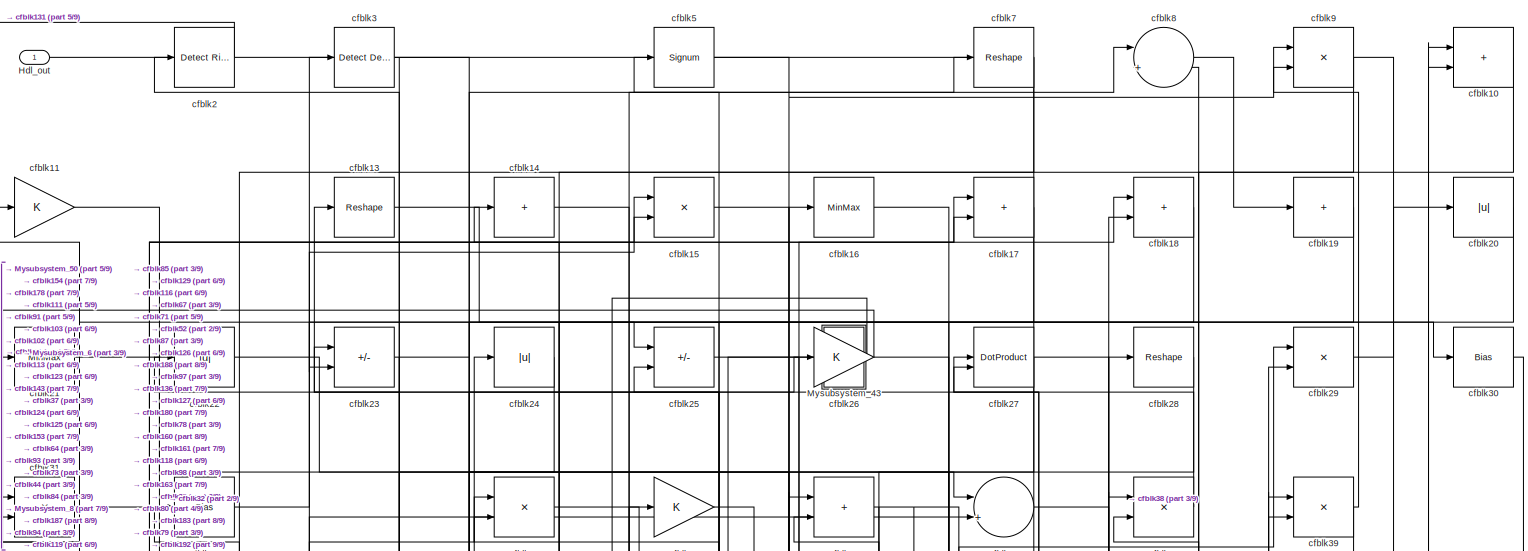
[diagram: root canvas - part 1/9, full width, top band]
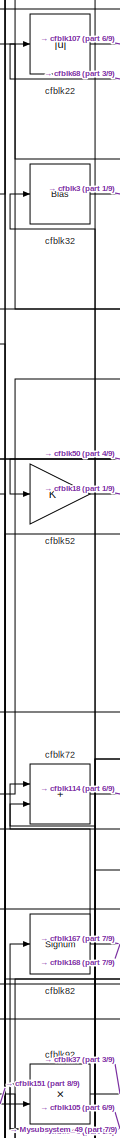
[diagram: root canvas - part 2/9, top left region]
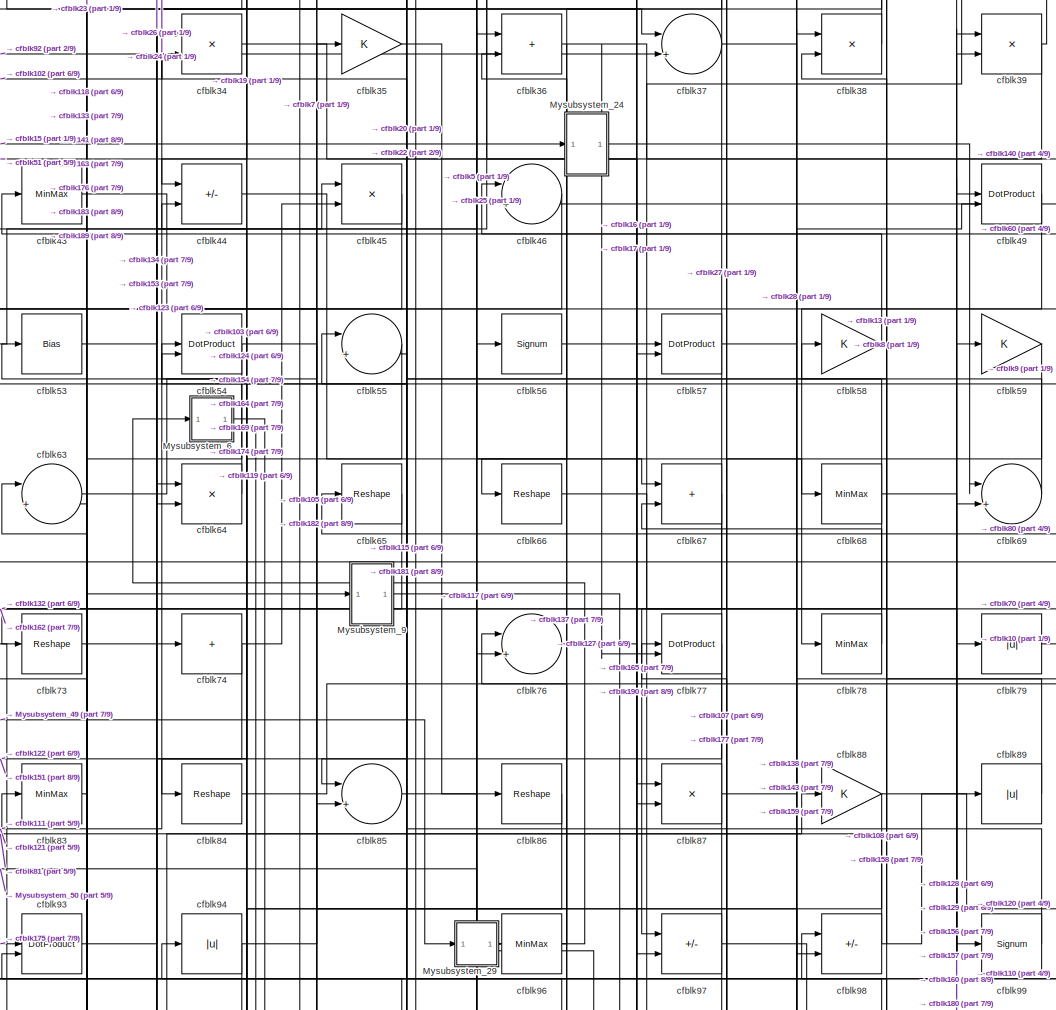
[diagram: root canvas - part 3/9, top center region]
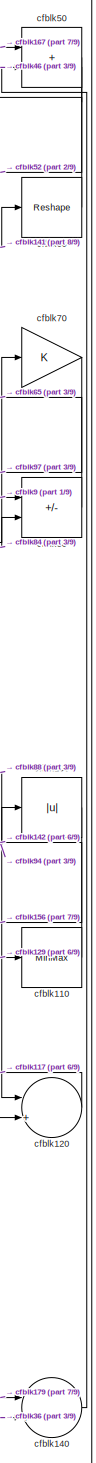
[diagram: root canvas - part 4/9, middle right region]
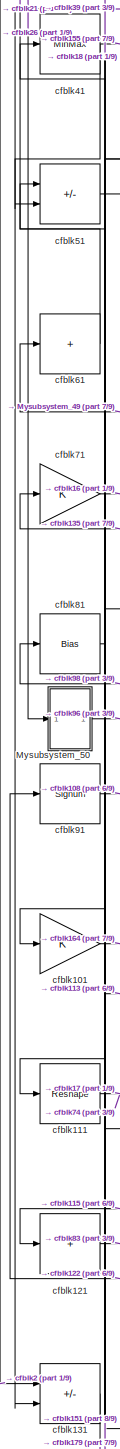
[diagram: root canvas - part 5/9, middle left region]
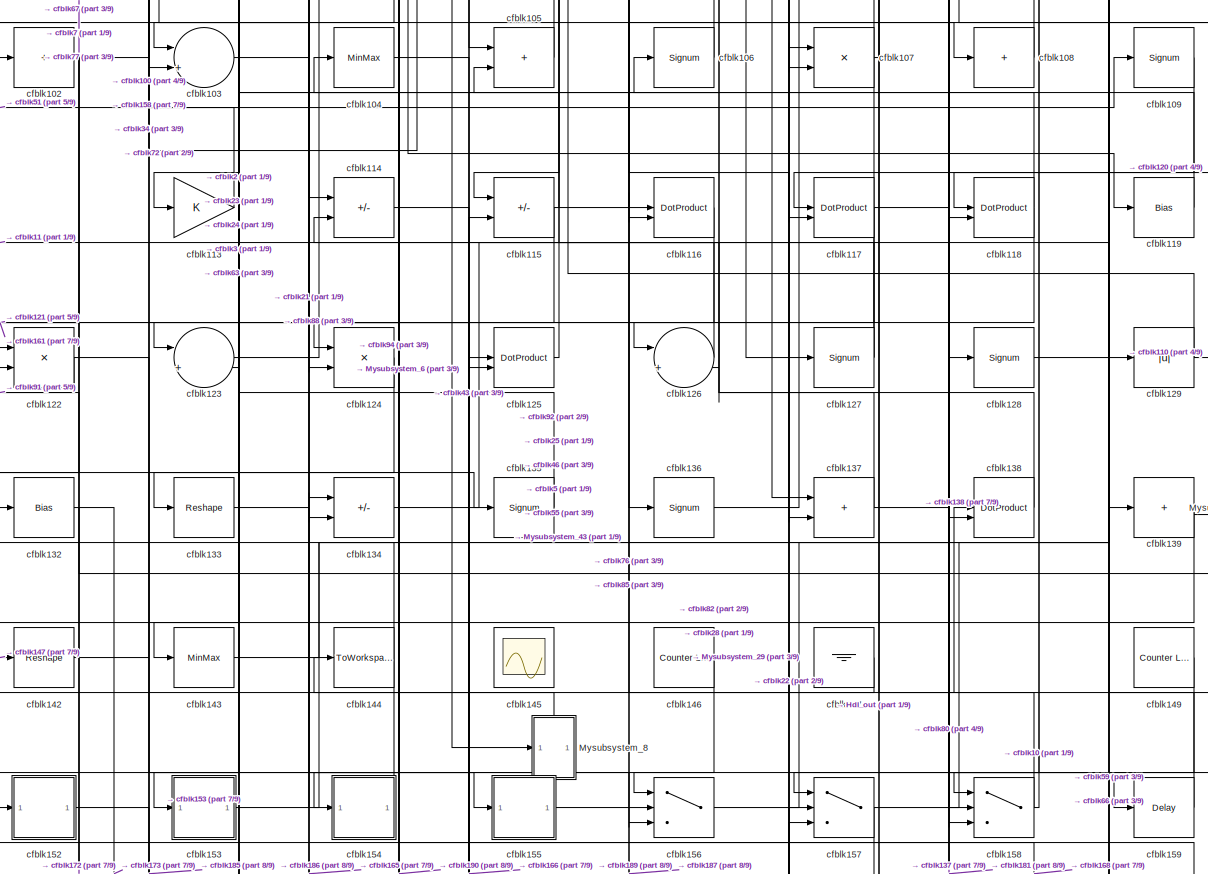
[diagram: root canvas - part 6/9, full width, middle band]
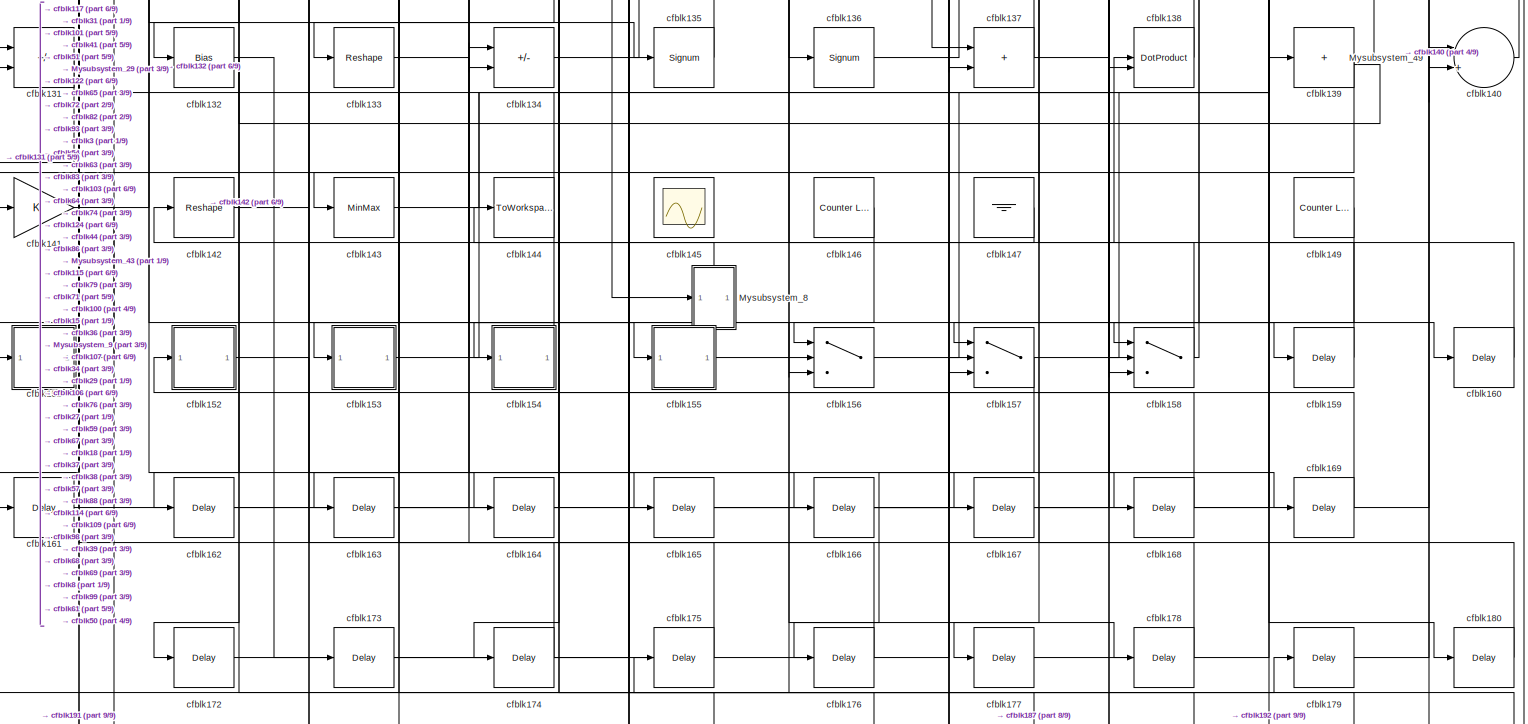
[diagram: root canvas - part 7/9, full width, bottom band]
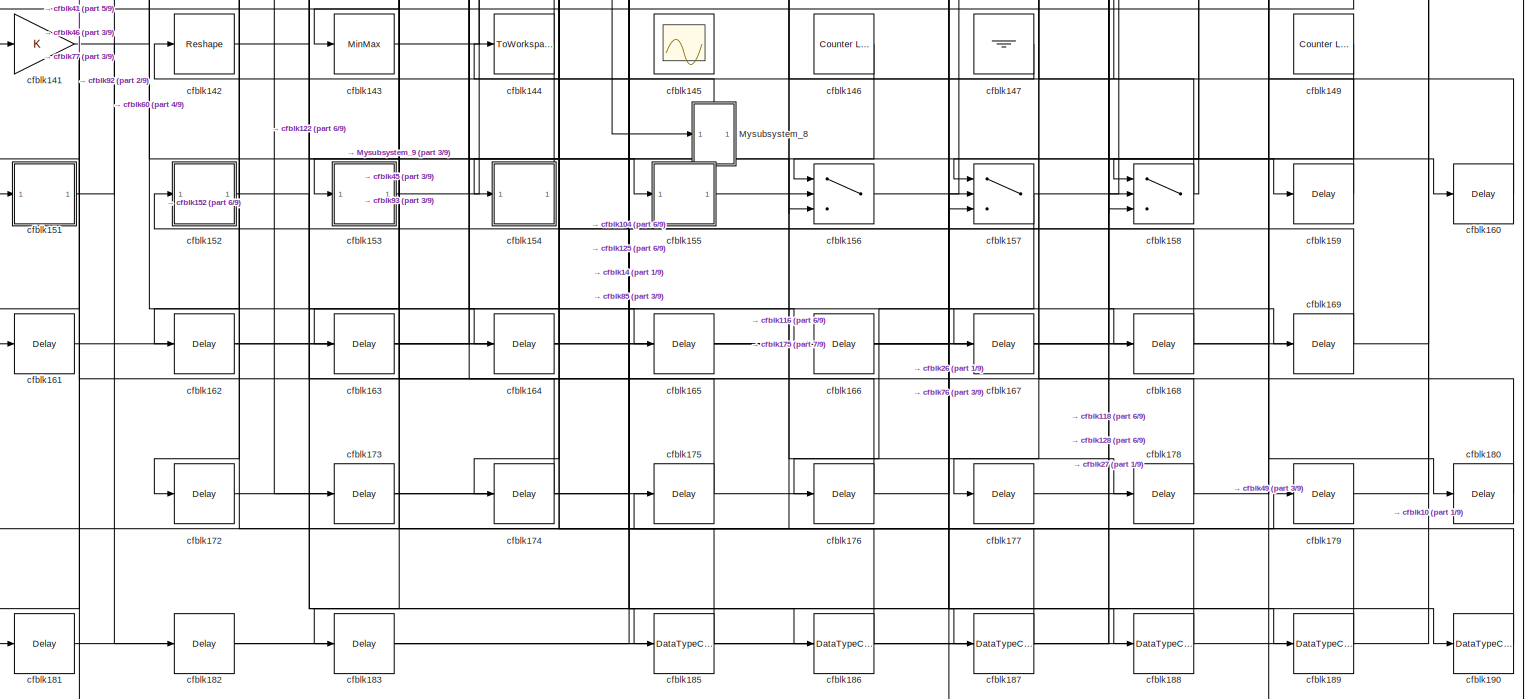
[diagram: root canvas - part 8/9, full width, bottom band]
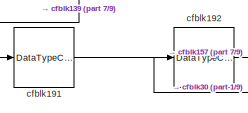
[diagram: root canvas - part 9/9, bottom left region]
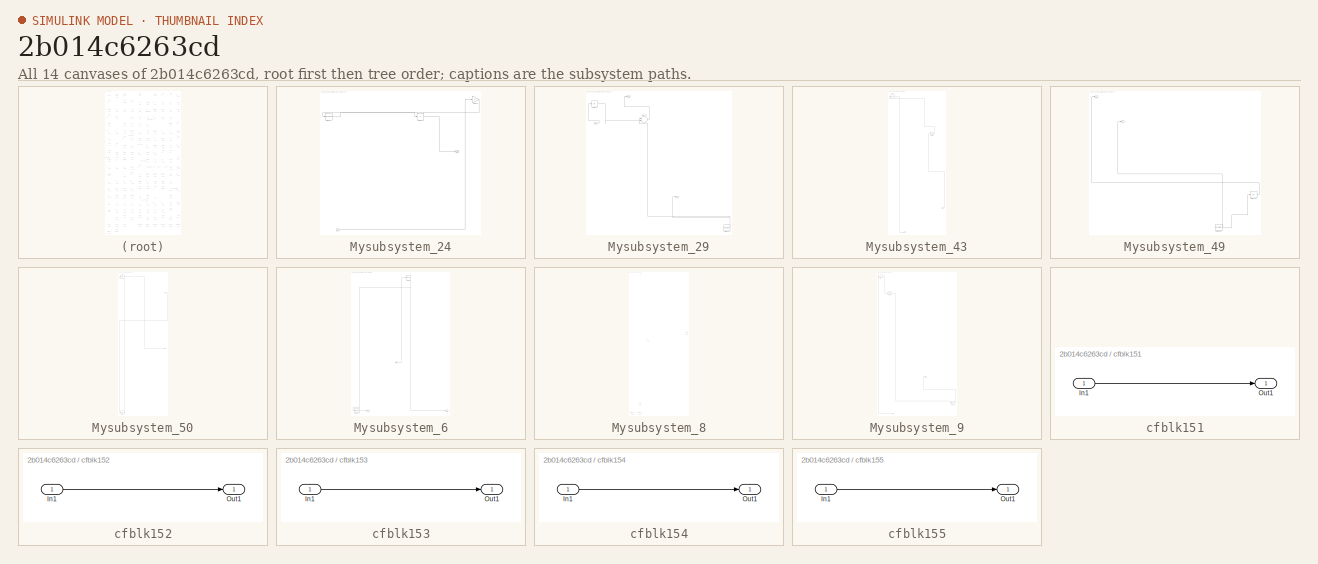
[diagram: thumbnail index - all 14 canvases of the model, root first then tree order]
MODEL slx_2b014c6263cd
KIND model
CONFIG AbsTol = auto
CONFIG EnableMultiTasking = off
CONFIG FixedStep = auto
CONFIG MaxStep = auto
CONFIG MinStep = auto
CONFIG RelTol = 1e-3
CONFIG SampleTimeConstraint = Unconstrained
CONFIG SolverName = VariableStepAuto
CONFIG StartTime = 0.0
CONFIG StopTime = 10.0
BLOCK [Outport] Hdl_out
  OutDataTypeStr = uint8
BLOCK [SubSystem] Mysubsystem_24
  RTWFcnName = Mysubsystem_24
  RTWFcnNameOpts = User specified
  RTWFileNameOpts = Use function name
  RTWSystemCode = Reusable function
  TreatAsAtomicUnit = on
BLOCK [Inport] Mysubsystem_24/In1
BLOCK [Outport] Mysubsystem_24/Out1
BLOCK [Gain] Mysubsystem_24/cfblk40
BLOCK [Reshape] Mysubsystem_24/cfblk42
BLOCK [Sum] Mysubsystem_24/cfblk47
  IconShape = rectangular
  Inputs = +
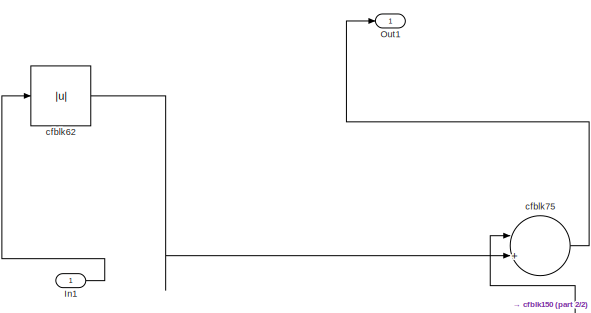
[diagram: Mysubsystem_29 - part 1/2, top left region]
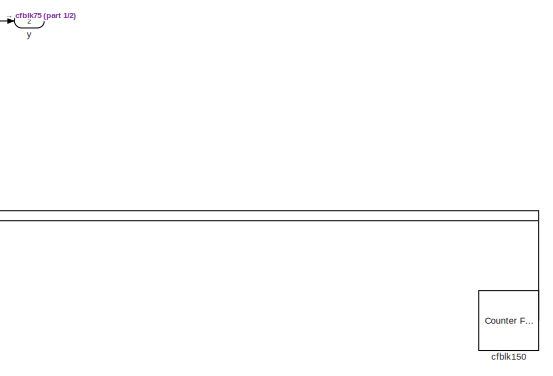
[diagram: Mysubsystem_29 - part 2/2, bottom right region]
BLOCK [SubSystem] Mysubsystem_29
  RTWFcnName = Mysubsystem_29
  RTWFcnNameOpts = User specified
  RTWFileNameOpts = Use function name
  RTWSystemCode = Reusable function
  TreatAsAtomicUnit = on
BLOCK [Inport] Mysubsystem_29/In1
BLOCK [Outport] Mysubsystem_29/Out1
BLOCK [Reference] Mysubsystem_29/cfblk150  REF=hdlsllib/Sources/Counter
Free-Running
  SourceBlock = hdlsllib/Sources/Counter\nFree-Running
  SourceType = Counter Free-Running
BLOCK [Abs] Mysubsystem_29/cfblk62
  SaturateOnIntegerOverflow = off
BLOCK [Sum] Mysubsystem_29/cfblk75
  Inputs = |++
BLOCK [Outport] Mysubsystem_29/y
  Port = 2
BLOCK [SubSystem] Mysubsystem_43
  RTWFcnName = Mysubsystem_43
  RTWFcnNameOpts = User specified
  RTWFileNameOpts = Use function name
  RTWSystemCode = Reusable function
  TreatAsAtomicUnit = on
BLOCK [Inport] Mysubsystem_43/In1
BLOCK [Outport] Mysubsystem_43/Y
BLOCK [Reference] Mysubsystem_43/cfblk4  REF=hdlsllib/Logic and Bit
Operations/Detect Fall
Negative
  SourceBlock = hdlsllib/Logic and Bit\nOperations/Detect Fall\nNegative
  SourceType = Detect Fall Negative
BLOCK [Gain] Mysubsystem_43/cfblk48
BLOCK [SubSystem] Mysubsystem_49
  RTWFcnName = Mysubsystem_49
  RTWFcnNameOpts = User specified
  RTWFileNameOpts = Use function name
  RTWSystemCode = Reusable function
  TreatAsAtomicUnit = on
BLOCK [Outport] Mysubsystem_49/Out1
BLOCK [Abs] Mysubsystem_49/cfblk130
  SaturateOnIntegerOverflow = off
BLOCK [Reference] Mysubsystem_49/cfblk148  REF=hdlsllib/Sources/Counter
Limited
  SourceBlock = hdlsllib/Sources/Counter\nLimited
  SourceType = Counter Limited
BLOCK [Outport] Mysubsystem_49/y
  Port = 2
BLOCK [SubSystem] Mysubsystem_50
  RTWFcnName = Mysubsystem_50
  RTWFcnNameOpts = User specified
  RTWFileNameOpts = Use function name
  RTWSystemCode = Reusable function
  TreatAsAtomicUnit = on
BLOCK [Inport] Mysubsystem_50/In1
BLOCK [Reference] Mysubsystem_50/cfblk1  REF=simulink/Logic and Bit
Operations/Bit Set
  LibrarySourceBlock = hdlsllib/Logic and Bit\nOperations/Bit Set
  SourceBlock = simulink/Logic and Bit\nOperations/Bit Set
  SourceType = Bit Set
BLOCK [Delay] Mysubsystem_50/cfblk171
  InputPortMap = u0
  SampleTime = 1
BLOCK [Outport] Mysubsystem_50/y
BLOCK [SubSystem] Mysubsystem_6
  RTWFcnName = Mysubsystem_6
  RTWFcnNameOpts = User specified
  RTWFileNameOpts = Use function name
  RTWSystemCode = Reusable function
  TreatAsAtomicUnit = on
BLOCK [Inport] Mysubsystem_6/In1
BLOCK [Outport] Mysubsystem_6/Out1
BLOCK [Outport] Mysubsystem_6/Out2
  Port = 2
BLOCK [Signum] Mysubsystem_6/cfblk112
BLOCK [Signum] Mysubsystem_6/cfblk6
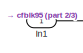
[diagram: Mysubsystem_8 - part 1/3, top left region]
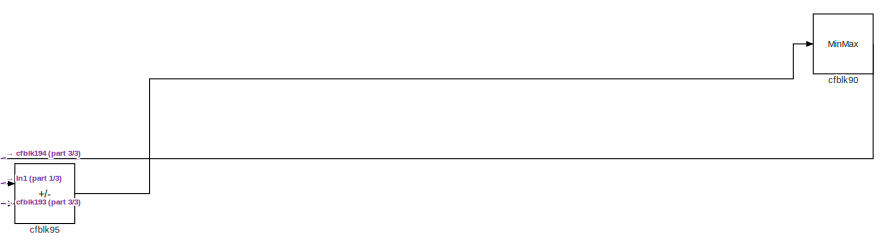
[diagram: Mysubsystem_8 - part 2/3, central region]
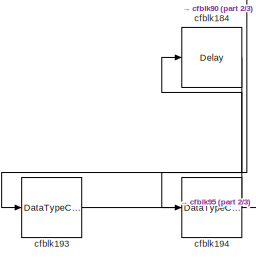
[diagram: Mysubsystem_8 - part 3/3, bottom left region]
BLOCK [SubSystem] Mysubsystem_8
  RTWFcnName = Mysubsystem_8
  RTWFcnNameOpts = User specified
  RTWFileNameOpts = Use function name
  RTWSystemCode = Reusable function
  TreatAsAtomicUnit = on
BLOCK [Inport] Mysubsystem_8/In1
BLOCK [Delay] Mysubsystem_8/cfblk184
  InputPortMap = u0
  SampleTime = 1
BLOCK [DataTypeConversion] Mysubsystem_8/cfblk193
  OutDataTypeStr = uint8
  RndMeth = Floor
  SaturateOnIntegerOverflow = off
BLOCK [DataTypeConversion] Mysubsystem_8/cfblk194
  OutDataTypeStr = uint8
  RndMeth = Floor
  SaturateOnIntegerOverflow = off
BLOCK [MinMax] Mysubsystem_8/cfblk90
BLOCK [Sum] Mysubsystem_8/cfblk95
  IconShape = rectangular
  Inputs = +-
BLOCK [SubSystem] Mysubsystem_9
  RTWFcnName = Mysubsystem_9
  RTWFcnNameOpts = User specified
  RTWFileNameOpts = Use function name
  RTWSystemCode = Reusable function
  TreatAsAtomicUnit = on
BLOCK [Inport] Mysubsystem_9/In1
BLOCK [Outport] Mysubsystem_9/Out1
BLOCK [Abs] Mysubsystem_9/cfblk12
  SaturateOnIntegerOverflow = off
BLOCK [Delay] Mysubsystem_9/cfblk170
  InputPortMap = u0
  SampleTime = 1
BLOCK [MinMax] Mysubsystem_9/cfblk33
BLOCK [Sum] cfblk10
  IconShape = rectangular
  OutDataTypeStr = uint8
BLOCK [Abs] cfblk100
  OutDataTypeStr = uint8
  SaturateOnIntegerOverflow = off
BLOCK [Gain] cfblk101
  OutDataTypeStr = uint8
BLOCK [Sum] cfblk102
  IconShape = rectangular
  Inputs = +
  OutDataTypeStr = uint8
BLOCK [Sum] cfblk103
  Inputs = |++
  OutDataTypeStr = uint8
BLOCK [MinMax] cfblk104
  OutDataTypeStr = uint8
BLOCK [Sum] cfblk105
  IconShape = rectangular
  OutDataTypeStr = uint8
BLOCK [Signum] cfblk106
BLOCK [Product] cfblk107
  Inputs = */
  OutDataTypeStr = uint8
  RndMeth = Zero
  SaturateOnIntegerOverflow = on
BLOCK [Sum] cfblk108
  IconShape = rectangular
  Inputs = +
  OutDataTypeStr = uint8
BLOCK [Signum] cfblk109
BLOCK [Gain] cfblk11
  OutDataTypeStr = uint8
BLOCK [MinMax] cfblk110
  OutDataTypeStr = uint8
BLOCK [Reshape] cfblk111
BLOCK [Gain] cfblk113
  OutDataTypeStr = uint8
BLOCK [Sum] cfblk114
  IconShape = rectangular
  Inputs = +-
  OutDataTypeStr = uint8
BLOCK [Sum] cfblk115
  IconShape = rectangular
  Inputs = +-
  OutDataTypeStr = uint8
BLOCK [DotProduct] cfblk116
  OutDataTypeStr = uint8
BLOCK [DotProduct] cfblk117
  OutDataTypeStr = uint8
BLOCK [DotProduct] cfblk118
  OutDataTypeStr = uint8
BLOCK [Bias] cfblk119
  Bias = 0.0
  SaturateOnIntegerOverflow = off
BLOCK [Sum] cfblk120
  Inputs = |++
  OutDataTypeStr = uint8
BLOCK [Sum] cfblk121
  IconShape = rectangular
  Inputs = +
  OutDataTypeStr = uint8
BLOCK [Product] cfblk122
  Inputs = */
  OutDataTypeStr = uint8
  RndMeth = Zero
  SaturateOnIntegerOverflow = on
BLOCK [Sum] cfblk123
  Inputs = |++
  OutDataTypeStr = uint8
BLOCK [Product] cfblk124
  Inputs = */
  OutDataTypeStr = uint8
  RndMeth = Zero
  SaturateOnIntegerOverflow = on
BLOCK [DotProduct] cfblk125
  OutDataTypeStr = uint8
BLOCK [Sum] cfblk126
  Inputs = |++
  OutDataTypeStr = uint8
BLOCK [Signum] cfblk127
BLOCK [Signum] cfblk128
BLOCK [Abs] cfblk129
  OutDataTypeStr = uint8
  SaturateOnIntegerOverflow = off
BLOCK [Reshape] cfblk13
BLOCK [Sum] cfblk131
  IconShape = rectangular
  Inputs = +-
  OutDataTypeStr = uint8
BLOCK [Bias] cfblk132
  Bias = 0.0
  SaturateOnIntegerOverflow = off
BLOCK [Reshape] cfblk133
BLOCK [Sum] cfblk134
  IconShape = rectangular
  Inputs = +-
  OutDataTypeStr = uint8
BLOCK [Signum] cfblk135
BLOCK [Signum] cfblk136
BLOCK [Sum] cfblk137
  IconShape = rectangular
  OutDataTypeStr = uint8
BLOCK [DotProduct] cfblk138
  OutDataTypeStr = uint8
BLOCK [Sum] cfblk139
  IconShape = rectangular
  Inputs = +
  OutDataTypeStr = uint8
BLOCK [Sum] cfblk14
  IconShape = rectangular
  Inputs = +
  OutDataTypeStr = uint8
BLOCK [Sum] cfblk140
  Inputs = |++
  OutDataTypeStr = uint8
BLOCK [Gain] cfblk141
  OutDataTypeStr = uint8
BLOCK [Reshape] cfblk142
BLOCK [MinMax] cfblk143
  OutDataTypeStr = uint8
BLOCK [ToWorkspace] cfblk144
  MaxDataPoints = inf
  SampleTime = -1
  SaveFormat = Timeseries
  VariableName = simout
BLOCK [Scope] cfblk145
  Floating = on
  NumInputPorts = 1
  ScopeSpecificationString = Simulink.scopes.TimeScopeBlockCfg('CurrentConfiguration', extmgr.ConfigurationSet(extmgr.Configuration('Core','General UI',true,'FigureColor',[0.156862745098039 0.156862745098039 0.156862745098039]),extmgr.Configuration('Core','Source UI',true),extmgr.Configuration('Sources','WiredSimulink',true,'DataLoggingVariableName','ScopeData1','DataLoggingSaveFormat','StructureWithTime','DataLoggingLimitDat...<+2713ch>
BLOCK [Reference] cfblk146  REF=hdlsllib/Sources/Counter
Limited
  SourceBlock = hdlsllib/Sources/Counter\nLimited
  SourceType = Counter Limited
BLOCK [Ground] cfblk147
BLOCK [Reference] cfblk149  REF=hdlsllib/Sources/Counter
Limited
  SourceBlock = hdlsllib/Sources/Counter\nLimited
  SourceType = Counter Limited
BLOCK [Product] cfblk15
  Inputs = */
  OutDataTypeStr = uint8
  RndMeth = Zero
  SaturateOnIntegerOverflow = on
BLOCK [SubSystem] cfblk151
  LibrarySourceBlock = hdlsllib/Ports &\nSubsystems/Subsystem
BLOCK [Inport] cfblk151/In1
BLOCK [Outport] cfblk151/Out1
BLOCK [SubSystem] cfblk152
  LibrarySourceBlock = hdlsllib/Ports &\nSubsystems/Subsystem
BLOCK [Inport] cfblk152/In1
BLOCK [Outport] cfblk152/Out1
BLOCK [SubSystem] cfblk153
  LibrarySourceBlock = hdlsllib/Ports &\nSubsystems/Subsystem
BLOCK [Inport] cfblk153/In1
BLOCK [Outport] cfblk153/Out1
BLOCK [SubSystem] cfblk154
  LibrarySourceBlock = hdlsllib/Ports &\nSubsystems/Subsystem
BLOCK [Inport] cfblk154/In1
BLOCK [Outport] cfblk154/Out1
BLOCK [SubSystem] cfblk155
  LibrarySourceBlock = hdlsllib/Ports &\nSubsystems/Subsystem
BLOCK [Inport] cfblk155/In1
BLOCK [Outport] cfblk155/Out1
BLOCK [Switch] cfblk156
  InputSameDT = off
  OutDataTypeStr = uint8
  SaturateOnIntegerOverflow = off
BLOCK [Switch] cfblk157
  InputSameDT = off
  OutDataTypeStr = uint8
  SaturateOnIntegerOverflow = off
BLOCK [Switch] cfblk158
  InputSameDT = off
  OutDataTypeStr = uint8
  SaturateOnIntegerOverflow = off
BLOCK [Delay] cfblk159
  InputPortMap = u0
  SampleTime = 1
BLOCK [MinMax] cfblk16
  OutDataTypeStr = uint8
BLOCK [Delay] cfblk160
  InputPortMap = u0
  SampleTime = 1
BLOCK [Delay] cfblk161
  InputPortMap = u0
  SampleTime = 1
BLOCK [Delay] cfblk162
  InputPortMap = u0
  SampleTime = 1
BLOCK [Delay] cfblk163
  InputPortMap = u0
  SampleTime = 1
BLOCK [Delay] cfblk164
  InputPortMap = u0
  SampleTime = 1
BLOCK [Delay] cfblk165
  InputPortMap = u0
  SampleTime = 1
BLOCK [Delay] cfblk166
  InputPortMap = u0
  SampleTime = 1
BLOCK [Delay] cfblk167
  InputPortMap = u0
  SampleTime = 1
BLOCK [Delay] cfblk168
  InputPortMap = u0
  SampleTime = 1
BLOCK [Delay] cfblk169
  InputPortMap = u0
  SampleTime = 1
BLOCK [Sum] cfblk17
  IconShape = rectangular
  OutDataTypeStr = uint8
BLOCK [Delay] cfblk172
  InputPortMap = u0
  SampleTime = 1
BLOCK [Delay] cfblk173
  InputPortMap = u0
  SampleTime = 1
BLOCK [Delay] cfblk174
  InputPortMap = u0
  SampleTime = 1
BLOCK [Delay] cfblk175
  InputPortMap = u0
  SampleTime = 1
BLOCK [Delay] cfblk176
  InputPortMap = u0
  SampleTime = 1
BLOCK [Delay] cfblk177
  InputPortMap = u0
  SampleTime = 1
BLOCK [Delay] cfblk178
  InputPortMap = u0
  SampleTime = 1
BLOCK [Delay] cfblk179
  InputPortMap = u0
  SampleTime = 1
BLOCK [Sum] cfblk18
  IconShape = rectangular
  OutDataTypeStr = uint8
BLOCK [Delay] cfblk180
  InputPortMap = u0
  SampleTime = 1
BLOCK [Delay] cfblk181
  InputPortMap = u0
  SampleTime = 1
BLOCK [Delay] cfblk182
  InputPortMap = u0
  SampleTime = 1
BLOCK [Delay] cfblk183
  InputPortMap = u0
  SampleTime = 1
BLOCK [DataTypeConversion] cfblk185
  OutDataTypeStr = uint8
  RndMeth = Floor
  SaturateOnIntegerOverflow = off
BLOCK [DataTypeConversion] cfblk186
  OutDataTypeStr = uint8
  RndMeth = Floor
  SaturateOnIntegerOverflow = off
BLOCK [DataTypeConversion] cfblk187
  OutDataTypeStr = uint8
  RndMeth = Floor
  SaturateOnIntegerOverflow = off
BLOCK [DataTypeConversion] cfblk188
  OutDataTypeStr = uint8
  RndMeth = Floor
  SaturateOnIntegerOverflow = off
BLOCK [DataTypeConversion] cfblk189
  OutDataTypeStr = uint8
  RndMeth = Floor
  SaturateOnIntegerOverflow = off
BLOCK [Sum] cfblk19
  IconShape = rectangular
  Inputs = +
  OutDataTypeStr = uint8
BLOCK [DataTypeConversion] cfblk190
  OutDataTypeStr = uint8
  RndMeth = Floor
  SaturateOnIntegerOverflow = off
BLOCK [DataTypeConversion] cfblk191
  OutDataTypeStr = uint8
  RndMeth = Floor
  SaturateOnIntegerOverflow = off
BLOCK [DataTypeConversion] cfblk192
  OutDataTypeStr = uint8
  RndMeth = Floor
  SaturateOnIntegerOverflow = off
BLOCK [Reference] cfblk2  REF=hdlsllib/Logic and Bit
Operations/Detect Rise
Positive
  SourceBlock = hdlsllib/Logic and Bit\nOperations/Detect Rise\nPositive
  SourceType = Detect Rise Positive
BLOCK [Abs] cfblk20
  OutDataTypeStr = uint8
  SaturateOnIntegerOverflow = off
BLOCK [MinMax] cfblk21
  OutDataTypeStr = uint8
BLOCK [Abs] cfblk22
  OutDataTypeStr = uint8
  SaturateOnIntegerOverflow = off
BLOCK [Sum] cfblk23
  IconShape = rectangular
  Inputs = +-
  OutDataTypeStr = uint8
BLOCK [Abs] cfblk24
  OutDataTypeStr = uint8
  SaturateOnIntegerOverflow = off
BLOCK [Sum] cfblk25
  IconShape = rectangular
  Inputs = +-
  OutDataTypeStr = uint8
BLOCK [Gain] cfblk26
  OutDataTypeStr = uint8
BLOCK [DotProduct] cfblk27
  OutDataTypeStr = uint8
BLOCK [Reshape] cfblk28
BLOCK [Product] cfblk29
  Inputs = */
  OutDataTypeStr = uint8
  RndMeth = Zero
  SaturateOnIntegerOverflow = on
BLOCK [Reference] cfblk3  REF=simulink/Logic and Bit
Operations/Detect
Decrease
  LibrarySourceBlock = hdlsllib/Logic and Bit\nOperations/Detect\nDecrease
  SourceBlock = simulink/Logic and Bit\nOperations/Detect\nDecrease
  SourceType = Detect Decrease
BLOCK [Bias] cfblk30
  Bias = 0.0
  SaturateOnIntegerOverflow = off
BLOCK [Product] cfblk31
  Inputs = */
  OutDataTypeStr = uint8
  RndMeth = Zero
  SaturateOnIntegerOverflow = on
BLOCK [Bias] cfblk32
  Bias = 0.0
  SaturateOnIntegerOverflow = off
BLOCK [Product] cfblk34
  Inputs = */
  OutDataTypeStr = uint8
  RndMeth = Zero
  SaturateOnIntegerOverflow = on
BLOCK [Gain] cfblk35
  OutDataTypeStr = uint8
BLOCK [Sum] cfblk36
  IconShape = rectangular
  OutDataTypeStr = uint8
BLOCK [Sum] cfblk37
  Inputs = |++
  OutDataTypeStr = uint8
BLOCK [Product] cfblk38
  Inputs = */
  OutDataTypeStr = uint8
  RndMeth = Zero
  SaturateOnIntegerOverflow = on
BLOCK [Product] cfblk39
  Inputs = */
  OutDataTypeStr = uint8
  RndMeth = Zero
  SaturateOnIntegerOverflow = on
BLOCK [MinMax] cfblk41
  OutDataTypeStr = uint8
BLOCK [MinMax] cfblk43
  OutDataTypeStr = uint8
BLOCK [Sum] cfblk44
  IconShape = rectangular
  Inputs = +-
  OutDataTypeStr = uint8
BLOCK [Product] cfblk45
  Inputs = */
  OutDataTypeStr = uint8
  RndMeth = Zero
  SaturateOnIntegerOverflow = on
BLOCK [Sum] cfblk46
  Inputs = |++
  OutDataTypeStr = uint8
BLOCK [DotProduct] cfblk49
  OutDataTypeStr = uint8
BLOCK [Signum] cfblk5
BLOCK [Sum] cfblk50
  IconShape = rectangular
  OutDataTypeStr = uint8
BLOCK [Sum] cfblk51
  IconShape = rectangular
  Inputs = +-
  OutDataTypeStr = uint8
BLOCK [Gain] cfblk52
  OutDataTypeStr = uint8
BLOCK [Bias] cfblk53
  Bias = 0.0
  SaturateOnIntegerOverflow = off
BLOCK [DotProduct] cfblk54
  OutDataTypeStr = uint8
BLOCK [Sum] cfblk55
  Inputs = |++
  OutDataTypeStr = uint8
BLOCK [Signum] cfblk56
BLOCK [DotProduct] cfblk57
  OutDataTypeStr = uint8
BLOCK [Gain] cfblk58
  OutDataTypeStr = uint8
BLOCK [Gain] cfblk59
  OutDataTypeStr = uint8
BLOCK [Reshape] cfblk60
BLOCK [Sum] cfblk61
  IconShape = rectangular
  Inputs = +
  OutDataTypeStr = uint8
BLOCK [Sum] cfblk63
  Inputs = |++
  OutDataTypeStr = uint8
BLOCK [Product] cfblk64
  Inputs = */
  OutDataTypeStr = uint8
  RndMeth = Zero
  SaturateOnIntegerOverflow = on
BLOCK [Reshape] cfblk65
BLOCK [Reshape] cfblk66
BLOCK [Sum] cfblk67
  IconShape = rectangular
  OutDataTypeStr = uint8
BLOCK [MinMax] cfblk68
  OutDataTypeStr = uint8
BLOCK [Sum] cfblk69
  Inputs = |++
  OutDataTypeStr = uint8
BLOCK [Reshape] cfblk7
BLOCK [Gain] cfblk70
  OutDataTypeStr = uint8
BLOCK [Gain] cfblk71
  OutDataTypeStr = uint8
BLOCK [Sum] cfblk72
  IconShape = rectangular
  OutDataTypeStr = uint8
BLOCK [Reshape] cfblk73
BLOCK [Sum] cfblk74
  IconShape = rectangular
  Inputs = +
  OutDataTypeStr = uint8
BLOCK [Sum] cfblk76
  Inputs = |++
  OutDataTypeStr = uint8
BLOCK [DotProduct] cfblk77
  OutDataTypeStr = uint8
BLOCK [MinMax] cfblk78
  OutDataTypeStr = uint8
BLOCK [Abs] cfblk79
  OutDataTypeStr = uint8
  SaturateOnIntegerOverflow = off
BLOCK [Sum] cfblk8
  Inputs = |++
  OutDataTypeStr = uint8
BLOCK [Sum] cfblk80
  IconShape = rectangular
  Inputs = +-
  OutDataTypeStr = uint8
BLOCK [Bias] cfblk81
  Bias = 0.0
  SaturateOnIntegerOverflow = off
BLOCK [Signum] cfblk82
BLOCK [MinMax] cfblk83
  OutDataTypeStr = uint8
BLOCK [Reshape] cfblk84
BLOCK [Sum] cfblk85
  Inputs = |++
  OutDataTypeStr = uint8
BLOCK [Reshape] cfblk86
BLOCK [Product] cfblk87
  Inputs = */
  OutDataTypeStr = uint8
  RndMeth = Zero
  SaturateOnIntegerOverflow = on
BLOCK [Gain] cfblk88
  OutDataTypeStr = uint8
BLOCK [Abs] cfblk89
  OutDataTypeStr = uint8
  SaturateOnIntegerOverflow = off
BLOCK [Product] cfblk9
  Inputs = */
  OutDataTypeStr = uint8
  RndMeth = Zero
  SaturateOnIntegerOverflow = on
BLOCK [Signum] cfblk91
BLOCK [Product] cfblk92
  Inputs = */
  OutDataTypeStr = uint8
  RndMeth = Zero
  SaturateOnIntegerOverflow = on
BLOCK [DotProduct] cfblk93
  OutDataTypeStr = uint8
BLOCK [Abs] cfblk94
  OutDataTypeStr = uint8
  SaturateOnIntegerOverflow = off
BLOCK [MinMax] cfblk96
  OutDataTypeStr = uint8
BLOCK [Sum] cfblk97
  IconShape = rectangular
  Inputs = +-
  OutDataTypeStr = uint8
BLOCK [Sum] cfblk98
  IconShape = rectangular
  Inputs = +-
  OutDataTypeStr = uint8
BLOCK [Signum] cfblk99
LINE Mysubsystem_24/In1:1 -> Mysubsystem_24/cfblk40:1
LINE Mysubsystem_24/cfblk40:1 -> Mysubsystem_24/cfblk42:1
LINE Mysubsystem_24/cfblk42:1 -> Mysubsystem_24/cfblk47:1
LINE Mysubsystem_24/cfblk47:1 -> Mysubsystem_24/Out1:1
LINE Mysubsystem_24:1 -> cfblk69:1
LINE Mysubsystem_29/In1:1 -> Mysubsystem_29/cfblk62:1
NET Mysubsystem_29/cfblk150:1 -> Mysubsystem_29/cfblk75:1, Mysubsystem_29/y:1
LINE Mysubsystem_29/cfblk62:1 -> Mysubsystem_29/cfblk75:2
LINE Mysubsystem_29/cfblk75:1 -> Mysubsystem_29/Out1:1
LINE Mysubsystem_29:1 -> Mysubsystem_6:1
LINE Mysubsystem_29:2 -> cfblk127:1
LINE Mysubsystem_43/In1:1 -> Mysubsystem_43/cfblk48:1
LINE Mysubsystem_43/cfblk48:1 -> Mysubsystem_43/cfblk4:1
LINE Mysubsystem_43/cfblk4:1 -> Mysubsystem_43/Y:1
LINE Mysubsystem_43:1 -> Mysubsystem_8:1
LINE Mysubsystem_49/cfblk130:1 -> Mysubsystem_49/Out1:1
NET Mysubsystem_49/cfblk148:1 -> Mysubsystem_49/cfblk130:1, Mysubsystem_49/y:1
LINE Mysubsystem_49:1 -> cfblk61:1
NET Mysubsystem_49:2 -> Mysubsystem_29:1, cfblk72:1
LINE Mysubsystem_50/In1:1 -> Mysubsystem_50/cfblk171:1
LINE Mysubsystem_50/cfblk171:1 -> Mysubsystem_50/cfblk1:1
LINE Mysubsystem_50/cfblk1:1 -> Mysubsystem_50/y:1
LINE Mysubsystem_50:1 -> cfblk96:1
LINE Mysubsystem_6/In1:1 -> Mysubsystem_6/cfblk6:1
LINE Mysubsystem_6/cfblk112:1 -> Mysubsystem_6/Out1:1
NET Mysubsystem_6/cfblk6:1 -> Mysubsystem_6/Out2:1, Mysubsystem_6/cfblk112:1
NET Mysubsystem_6:1 -> Mysubsystem_24:1, cfblk15:2
LINE Mysubsystem_6:2 -> cfblk119:1
LINE Mysubsystem_8/In1:1 -> Mysubsystem_8/cfblk95:1
LINE Mysubsystem_8/cfblk184:1 -> Mysubsystem_8/cfblk193:1
LINE Mysubsystem_8/cfblk193:1 -> Mysubsystem_8/cfblk95:2
LINE Mysubsystem_8/cfblk194:1 -> Mysubsystem_8/cfblk184:1
LINE Mysubsystem_8/cfblk90:1 -> Mysubsystem_8/cfblk194:1
LINE Mysubsystem_8/cfblk95:1 -> Mysubsystem_8/cfblk90:1
LINE Mysubsystem_9/In1:1 -> Mysubsystem_9/cfblk12:1
LINE Mysubsystem_9/cfblk12:1 -> Mysubsystem_9/cfblk33:1
LINE Mysubsystem_9/cfblk170:1 -> Mysubsystem_9/Out1:1
LINE Mysubsystem_9/cfblk33:1 -> Mysubsystem_9/cfblk170:1
LINE Mysubsystem_9:1 -> cfblk137:1
LINE cfblk100:1 -> cfblk156:3
LINE cfblk101:1 -> cfblk164:1
LINE cfblk102:1 -> cfblk34:1
LINE cfblk103:1 -> cfblk165:1
LINE cfblk104:1 -> cfblk189:1
LINE cfblk105:1 -> cfblk92:1
LINE cfblk106:1 -> cfblk82:1
LINE cfblk107:1 -> cfblk77:1
LINE cfblk108:1 -> cfblk55:1
LINE cfblk109:1 -> cfblk158:1
LINE cfblk10:1 -> cfblk118:1
LINE cfblk110:1 -> cfblk94:1
NET cfblk111:1 -> cfblk17:2, cfblk74:1
LINE cfblk113:1 -> cfblk51:1
LINE cfblk114:1 -> cfblk166:1
NET cfblk115:1 -> cfblk121:1, cfblk55:2, cfblk76:2
LINE cfblk116:1 -> cfblk123:1
NET cfblk117:1 -> cfblk161:1, cfblk80:2
NET cfblk118:1 -> cfblk126:2, cfblk63:1
NET cfblk119:1 -> cfblk23:1, cfblk2:1, cfblk5:1
LINE cfblk11:1 -> cfblk103:2
LINE cfblk120:1 -> cfblk117:1
LINE cfblk121:1 -> cfblk83:1
NET cfblk122:1 -> cfblk186:1, cfblk91:1
LINE cfblk123:1 -> cfblk88:1
LINE cfblk124:1 -> cfblk153:1
LINE cfblk125:1 -> cfblk25:2
LINE cfblk126:1 -> cfblk11:1
NET cfblk127:1 -> Hdl_out:1, cfblk105:2
LINE cfblk128:1 -> cfblk59:1
NET cfblk129:1 -> Mysubsystem_43:1, cfblk110:1
LINE cfblk131:1 -> cfblk179:1
NET cfblk132:1 -> cfblk172:1, cfblk173:1
LINE cfblk133:1 -> cfblk156:2
LINE cfblk134:1 -> cfblk79:1
LINE cfblk135:1 -> cfblk71:1
LINE cfblk136:1 -> cfblk29:1
NET cfblk137:1 -> cfblk106:1, cfblk169:1, cfblk76:1
LINE cfblk138:1 -> cfblk114:2
LINE cfblk139:1 -> cfblk191:1
LINE cfblk13:1 -> cfblk25:1
LINE cfblk140:1 -> cfblk50:2
NET cfblk141:1 -> cfblk182:1, cfblk60:1
NET cfblk142:1 -> cfblk100:1, cfblk109:1, cfblk158:3
LINE cfblk143:1 -> cfblk38:1
LINE cfblk146:1 -> cfblk156:1
LINE cfblk147:1 -> cfblk142:1
LINE cfblk149:1 -> cfblk157:1
LINE cfblk14:1 -> cfblk187:1
LINE cfblk151/In1:1 -> cfblk151/Out1:1
NET cfblk151:1 -> cfblk41:1, cfblk92:2
LINE cfblk152/In1:1 -> cfblk152/Out1:1
LINE cfblk152:1 -> cfblk185:1
LINE cfblk153/In1:1 -> cfblk153/Out1:1
NET cfblk153:1 -> cfblk8:1, cfblk99:1
LINE cfblk154/In1:1 -> cfblk154/Out1:1
LINE cfblk154:1 -> cfblk31:1
LINE cfblk155/In1:1 -> cfblk155/Out1:1
NET cfblk155:1 -> cfblk144:1, cfblk178:1
LINE cfblk156:1 -> cfblk39:1
NET cfblk157:1 -> cfblk176:1, cfblk69:2
NET cfblk158:1 -> cfblk138:1, cfblk67:2, cfblk98:1
LINE cfblk159:1 -> cfblk36:1
LINE cfblk15:1 -> cfblk136:1
LINE cfblk160:1 -> cfblk49:1
LINE cfblk161:1 -> cfblk18:2
LINE cfblk162:1 -> cfblk134:1
LINE cfblk163:1 -> cfblk29:2
LINE cfblk164:1 -> cfblk54:2
LINE cfblk165:1 -> cfblk57:2
LINE cfblk166:1 -> cfblk107:1
LINE cfblk167:1 -> cfblk50:1
LINE cfblk168:1 -> cfblk122:2
LINE cfblk169:1 -> cfblk44:2
LINE cfblk16:1 -> cfblk97:2
LINE cfblk172:1 -> cfblk157:2
LINE cfblk173:1 -> cfblk115:2
LINE cfblk174:1 -> cfblk64:1
LINE cfblk175:1 -> cfblk93:1
LINE cfblk176:1 -> cfblk63:2
LINE cfblk177:1 -> cfblk39:2
LINE cfblk178:1 -> cfblk31:2
LINE cfblk179:1 -> cfblk140:1
NET cfblk17:1 -> cfblk23:2, cfblk87:2
LINE cfblk180:1 -> cfblk27:2
LINE cfblk181:1 -> cfblk118:2
LINE cfblk182:1 -> cfblk85:2
LINE cfblk183:1 -> cfblk10:2
NET cfblk185:1 -> cfblk125:1, cfblk128:1
LINE cfblk186:1 -> cfblk152:1
NET cfblk187:1 -> cfblk116:1, cfblk175:1
LINE cfblk188:1 -> cfblk14:1
NET cfblk189:1 -> Mysubsystem_9:1, cfblk93:2
LINE cfblk18:1 -> cfblk111:1
LINE cfblk190:1 -> cfblk104:1
LINE cfblk191:1 -> cfblk157:3
LINE cfblk192:1 -> cfblk139:1
LINE cfblk19:1 -> cfblk84:1
LINE cfblk20:1 -> cfblk85:1
NET cfblk21:1 -> cfblk116:2, cfblk124:2
LINE cfblk22:1 -> cfblk107:2
NET cfblk23:1 -> cfblk123:2, cfblk30:1, cfblk37:1
LINE cfblk24:1 -> cfblk113:1
LINE cfblk25:1 -> cfblk87:1
NET cfblk26:1 -> Mysubsystem_50:1, cfblk188:1
NET cfblk27:1 -> cfblk160:1, cfblk64:2
LINE cfblk28:1 -> cfblk126:1
LINE cfblk29:1 -> cfblk20:1
LINE cfblk2:1 -> cfblk131:1
LINE cfblk30:1 -> cfblk192:1
LINE cfblk31:1 -> cfblk15:1
LINE cfblk32:1 -> cfblk3:1
LINE cfblk34:1 -> cfblk137:2
LINE cfblk35:1 -> cfblk86:1
NET cfblk36:1 -> cfblk140:2, cfblk66:1, cfblk77:2
LINE cfblk37:1 -> cfblk138:2
LINE cfblk38:1 -> cfblk13:1
NET cfblk39:1 -> cfblk51:2, cfblk9:1
NET cfblk3:1 -> cfblk125:2, cfblk143:1
NET cfblk41:1 -> cfblk131:2, cfblk155:1
LINE cfblk43:1 -> cfblk105:1
LINE cfblk44:1 -> cfblk68:1
NET cfblk45:1 -> cfblk141:1, cfblk183:1
NET cfblk46:1 -> cfblk115:1, cfblk181:1
LINE cfblk49:1 -> cfblk78:1
LINE cfblk50:1 -> cfblk52:1
LINE cfblk51:1 -> cfblk135:1
LINE cfblk52:1 -> cfblk18:1
LINE cfblk53:1 -> cfblk45:1
NET cfblk54:1 -> cfblk163:1, cfblk98:2
LINE cfblk55:1 -> cfblk124:1
LINE cfblk56:1 -> cfblk57:1
NET cfblk57:1 -> cfblk159:1, cfblk49:2
LINE cfblk58:1 -> cfblk43:1
LINE cfblk59:1 -> cfblk177:1
NET cfblk5:1 -> cfblk67:1, cfblk9:2
NET cfblk60:1 -> cfblk46:1, cfblk46:2
LINE cfblk61:1 -> cfblk21:1
LINE cfblk63:1 -> cfblk35:1
LINE cfblk64:1 -> cfblk53:1
LINE cfblk65:1 -> cfblk162:1
LINE cfblk66:1 -> cfblk129:1
LINE cfblk67:1 -> cfblk132:1
NET cfblk68:1 -> cfblk180:1, cfblk22:1, cfblk73:1
LINE cfblk69:1 -> cfblk34:2
LINE cfblk70:1 -> cfblk97:1
LINE cfblk71:1 -> cfblk16:1
LINE cfblk72:1 -> cfblk114:1
LINE cfblk73:1 -> cfblk24:1
NET cfblk74:1 -> cfblk134:2, cfblk45:2
LINE cfblk76:1 -> cfblk190:1
NET cfblk77:1 -> cfblk122:1, cfblk151:1
LINE cfblk78:1 -> cfblk27:1
LINE cfblk79:1 -> cfblk10:1
LINE cfblk7:1 -> cfblk102:1
LINE cfblk80:1 -> cfblk65:1
LINE cfblk81:1 -> cfblk101:1
NET cfblk82:1 -> cfblk167:1, cfblk168:1, cfblk72:2
LINE cfblk83:1 -> cfblk133:1
LINE cfblk84:1 -> cfblk70:1
NET cfblk85:1 -> cfblk117:2, cfblk56:1
LINE cfblk86:1 -> cfblk154:1
LINE cfblk87:1 -> cfblk28:1
NET cfblk88:1 -> cfblk120:1, cfblk158:2, cfblk174:1
LINE cfblk89:1 -> cfblk38:2
LINE cfblk8:1 -> cfblk19:1
NET cfblk91:1 -> cfblk108:1, cfblk17:1
NET cfblk92:1 -> cfblk32:1, cfblk37:2
LINE cfblk93:1 -> cfblk26:1
NET cfblk94:1 -> cfblk103:1, cfblk7:1
LINE cfblk96:1 -> cfblk36:2
LINE cfblk97:1 -> cfblk120:2
NET cfblk98:1 -> cfblk81:1, cfblk89:1, cfblk8:2
NET cfblk99:1 -> cfblk54:1, cfblk58:1
NET cfblk9:1 -> cfblk44:1, cfblk80:1
note: NET lines group one-source signal fan-out (src -> all destinations, sorted); 1:1 wires keep LINE
